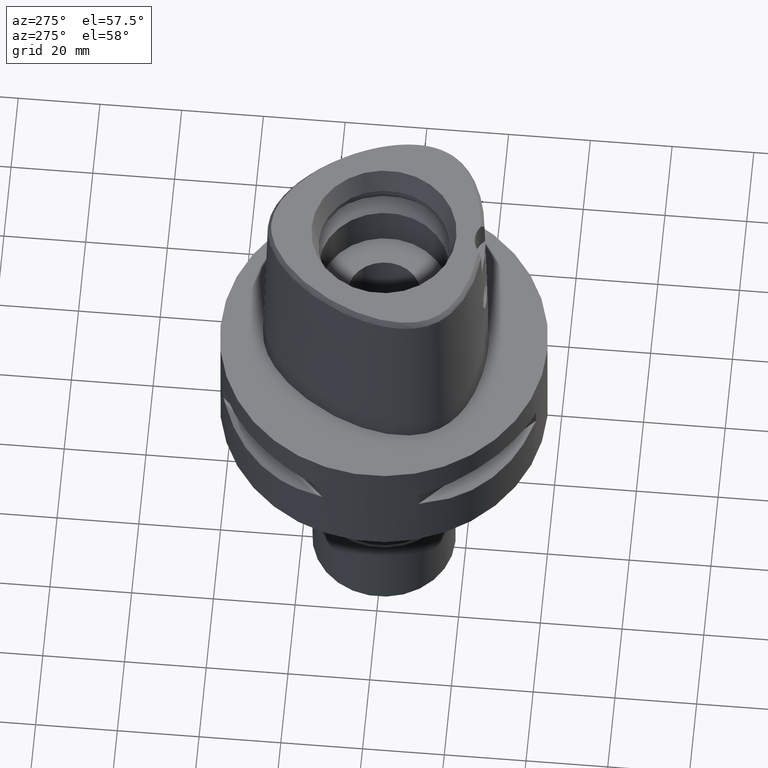
[diagram: clean part render]
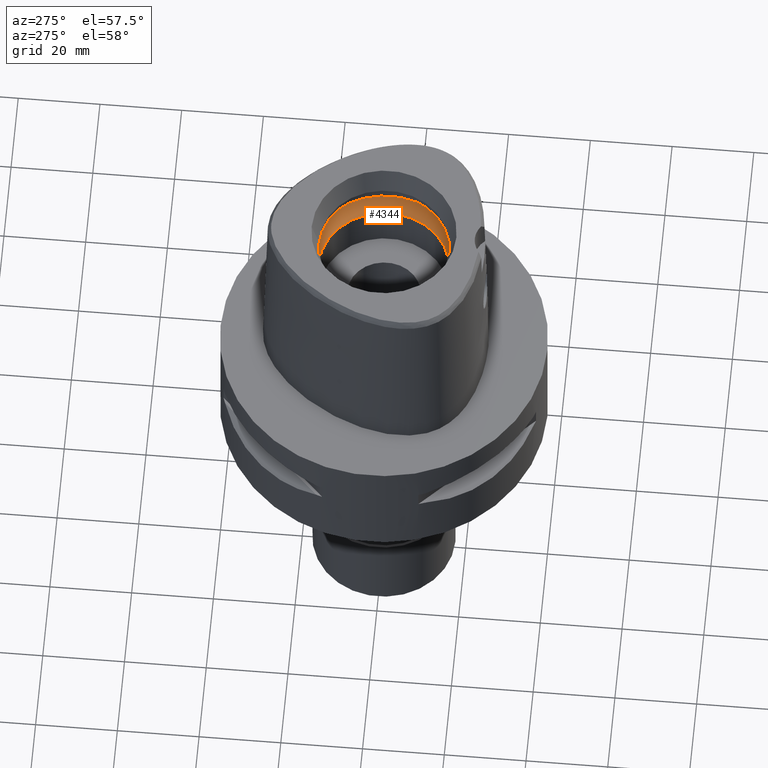
[diagram: same view with one face highlighted and labeled with its STEP entity id]
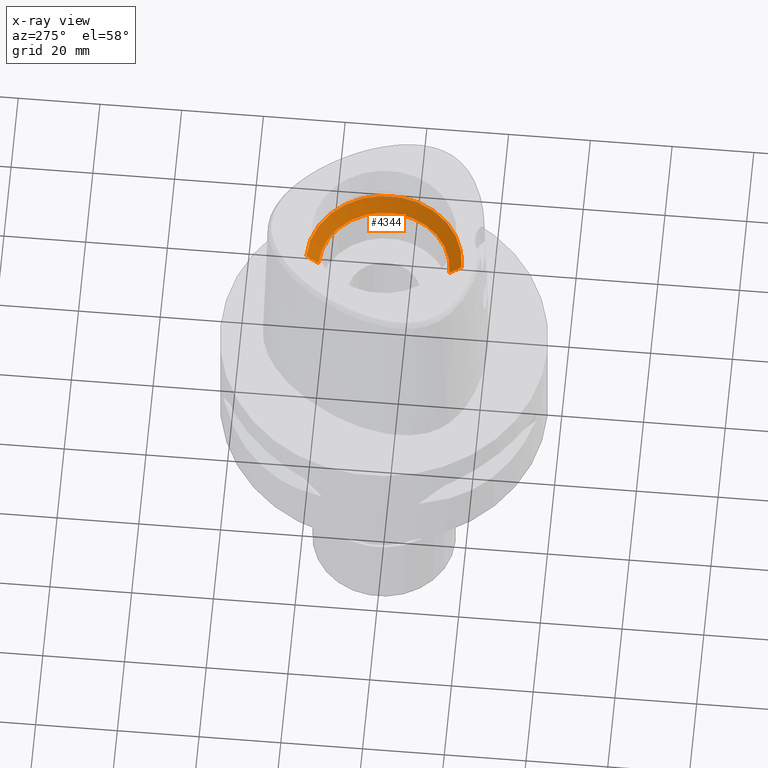
[diagram: x-ray of the same camera — body ghosted, the highlighted face saturated]
A machine part, auxiliary view. The second image highlights one B-rep face of the part: STEP entity #4344.
The next image is the same camera in x-ray: the body ghosted, the highlighted face saturated — about 0% of this face is hidden behind the body in this view.
In plain terms, the highlighted conical surface has half-angle 45 deg.
Its self-contained STEP definition (entity closure, byte-faithful):
#171 = DIRECTION ( 'NONE',  ( 0.0000000000000000000, -0.7071067811865474617, 0.7071067811865474617 ) ) ;
#359 = CARTESIAN_POINT ( 'NONE',  ( 0.0000000000000000000, 0.0000000000000000000, 31.50000000000000000 ) ) ;
#552 = CARTESIAN_POINT ( 'NONE',  ( 0.0000000000000000000, -16.00000000000000000, 31.50000000000000000 ) ) ;
#591 = EDGE_CURVE ( 'NONE', #1369, #2017, #2770, .T. ) ;
#612 = ORIENTED_EDGE ( 'NONE', *, *, #591, .F. ) ;
#755 = ORIENTED_EDGE ( 'NONE', *, *, #2277, .F. ) ;
#766 = DIRECTION ( 'NONE',  ( 0.0000000000000000000, -1.000000000000000000, 0.0000000000000000000 ) ) ;
#949 = CONICAL_SURFACE ( 'NONE', #1615, 17.50000000000000000, 0.7853981633972997312 ) ;
#1159 = DIRECTION ( 'NONE',  ( 0.0000000000000000000, 0.7071067811865474617, 0.7071067811865474617 ) ) ;
#1369 = VERTEX_POINT ( 'NONE', #2414 ) ;
#1596 = VERTEX_POINT ( 'NONE', #1946 ) ;
#1615 = AXIS2_PLACEMENT_3D ( 'NONE', #3547, #3162, #1767 ) ;
#1767 = DIRECTION ( 'NONE',  ( 0.0000000000000000000, 1.000000000000000000, 0.0000000000000000000 ) ) ;
#1946 = CARTESIAN_POINT ( 'NONE',  ( 0.0000000000000000000, -19.00000000000000000, 34.50000000000000000 ) ) ;
#1976 = DIRECTION ( 'NONE',  ( 0.0000000000000000000, 1.000000000000000000, 0.0000000000000000000 ) ) ;
#1982 = FACE_OUTER_BOUND ( 'NONE', #4200, .T. ) ;
#2011 = CARTESIAN_POINT ( 'NONE',  ( 0.0000000000000000000, -16.00000000000000000, 31.50000000000000000 ) ) ;
#2017 = VERTEX_POINT ( 'NONE', #4477 ) ;
#2277 = EDGE_CURVE ( 'NONE', #4760, #1369, #3194, .T. ) ;
#2336 = CARTESIAN_POINT ( 'NONE',  ( 0.0000000000000000000, 16.00000000000000000, 31.50000000000000000 ) ) ;
#2365 = DIRECTION ( 'NONE',  ( 0.0000000000000000000, 0.0000000000000000000, -1.000000000000000000 ) ) ;
#2414 = CARTESIAN_POINT ( 'NONE',  ( 0.0000000000000000000, 16.00000000000000000, 31.50000000000000000 ) ) ;
#2534 = AXIS2_PLACEMENT_3D ( 'NONE', #4332, #2365, #1976 ) ;
#2770 = LINE ( 'NONE', #2336, #4240 ) ;
#2869 = VECTOR ( 'NONE', #171, 1000.000000000000114 ) ;
#2913 = LINE ( 'NONE', #552, #2869 ) ;
#3074 = DIRECTION ( 'NONE',  ( 0.0000000000000000000, 0.0000000000000000000, 1.000000000000000000 ) ) ;
#3088 = EDGE_CURVE ( 'NONE', #4760, #1596, #2913, .T. ) ;
#3162 = DIRECTION ( 'NONE',  ( 0.0000000000000000000, 0.0000000000000000000, 1.000000000000000000 ) ) ;
#3194 = CIRCLE ( 'NONE', #4992, 16.00000000000000000 ) ;
#3547 = CARTESIAN_POINT ( 'NONE',  ( 0.0000000000000000000, 0.0000000000000000000, 33.00000000000000000 ) ) ;
#3673 = CIRCLE ( 'NONE', #2534, 19.00000000000000000 ) ;
#3730 = ORIENTED_EDGE ( 'NONE', *, *, #4463, .F. ) ;
#4026 = ORIENTED_EDGE ( 'NONE', *, *, #3088, .T. ) ;
#4200 = EDGE_LOOP ( 'NONE', ( #3730, #612, #755, #4026 ) ) ;
#4240 = VECTOR ( 'NONE', #1159, 1000.000000000000114 ) ;
#4332 = CARTESIAN_POINT ( 'NONE',  ( 0.0000000000000000000, 0.0000000000000000000, 34.50000000000000000 ) ) ;
#4344 = ADVANCED_FACE ( 'NONE', ( #1982 ), #949, .F. ) ;
#4463 = EDGE_CURVE ( 'NONE', #2017, #1596, #3673, .T. ) ;
#4477 = CARTESIAN_POINT ( 'NONE',  ( 0.0000000000000000000, 19.00000000000000000, 34.50000000000000000 ) ) ;
#4760 = VERTEX_POINT ( 'NONE', #2011 ) ;
#4992 = AXIS2_PLACEMENT_3D ( 'NONE', #359, #3074, #766 ) ;